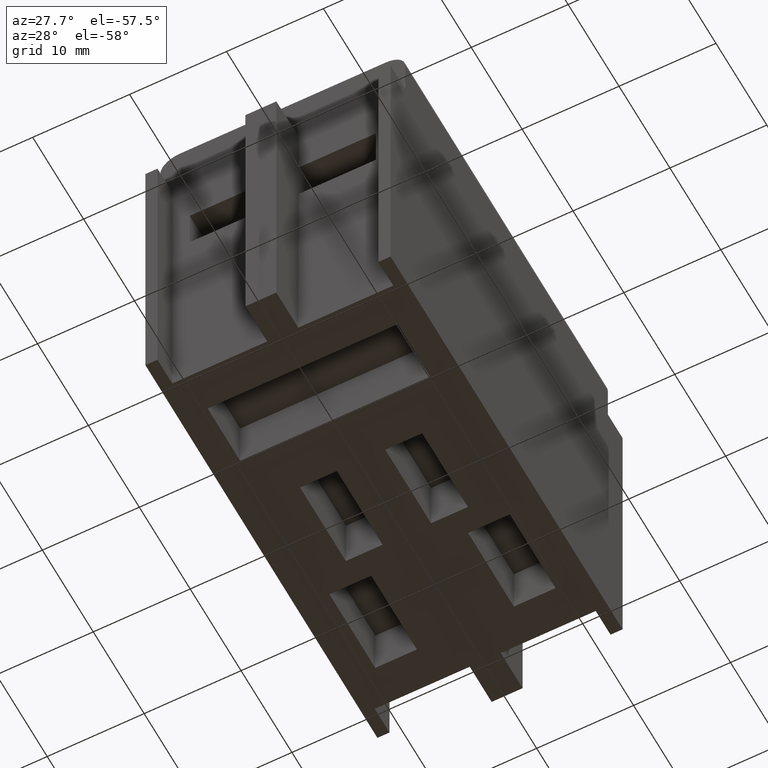
[diagram: clean part render]
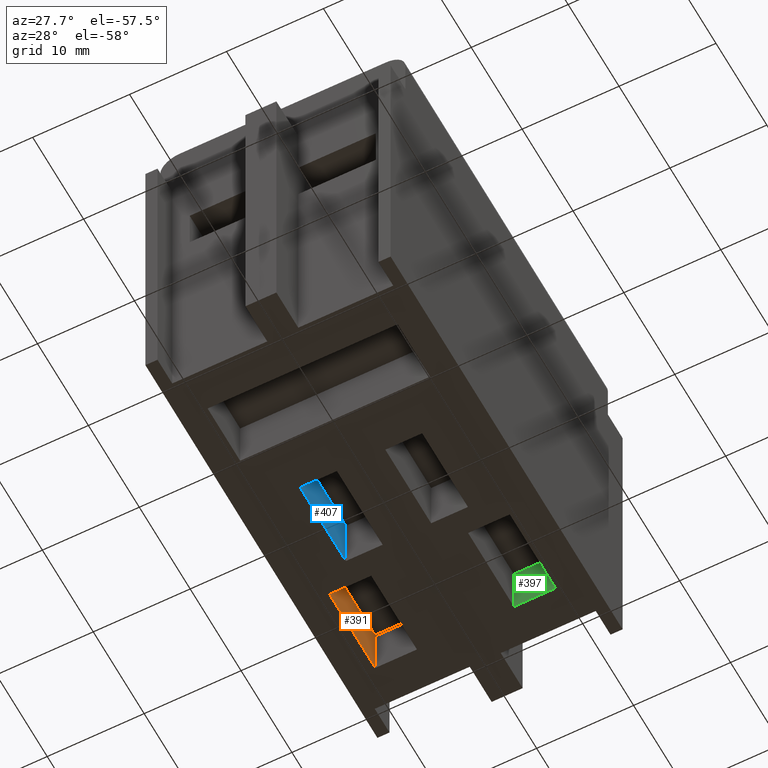
[diagram: same view with three faces highlighted in distinct colors, each labeled with its STEP entity id]
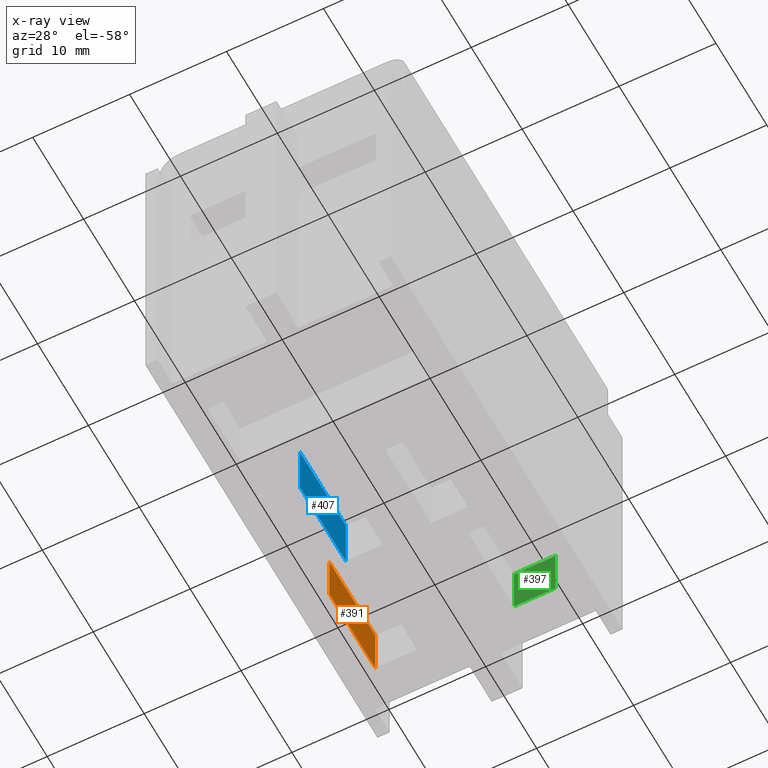
[diagram: x-ray of the same camera — body ghosted, the three highlighted faces saturated]
A machine part, auxiliary view with three faces highlighted in distinct colors.
The next image is the same camera in x-ray (body ghosted, the three faces saturated) — at least one of them is partly hidden behind the body in this view.
Their STEP definitions:

[orange] entity #391 — the highlighted planar face has unit normal (1, 0, -0).
#198=FACE_OUTER_BOUND('',#743,.T.);
#391=ADVANCED_FACE('',(#198),#516,.T.);
#516=PLANE('',#2815);
#743=EDGE_LOOP('',(#1371,#1372,#1373,#1374));
#1371=ORIENTED_EDGE('',*,*,#1735,.F.);
#1372=ORIENTED_EDGE('',*,*,#2023,.F.);
#1373=ORIENTED_EDGE('',*,*,#2024,.T.);
#1374=ORIENTED_EDGE('',*,*,#2017,.T.);
#1495=VERTEX_POINT('',#3579);
#1496=VERTEX_POINT('',#3580);
#1687=VERTEX_POINT('',#4163);
#1690=VERTEX_POINT('',#4173);
#1735=EDGE_CURVE('',#1495,#1496,#2085,.T.);
#2017=EDGE_CURVE('',#1687,#1496,#2311,.T.);
#2023=EDGE_CURVE('',#1690,#1495,#2317,.T.);
#2024=EDGE_CURVE('',#1690,#1687,#2318,.T.);
#2085=LINE('',#3578,#2379);
#2311=LINE('',#4162,#2605);
#2317=LINE('',#4174,#2611);
#2318=LINE('',#4176,#2612);
#2379=VECTOR('',#2869,1.);
#2605=VECTOR('',#3427,1.);
#2611=VECTOR('',#3437,1.);
#2612=VECTOR('',#3440,1.);
#2815=AXIS2_PLACEMENT_3D('',#4177,#3441,#3442);
#2869=DIRECTION('',(3.85494105772623E-016,-1.,0.));
#3427=DIRECTION('',(-1.40129846432482E-045,-3.22739251344522E-015,-1.));
#3437=DIRECTION('',(-1.40129846432482E-045,-3.22739251344522E-015,-1.));
#3440=DIRECTION('',(3.85494105772623E-016,-1.,0.));
#3441=DIRECTION('',(1.,3.85494105772623E-016,-1.24414079094783E-030));
#3442=DIRECTION('',(-3.85108611666851E-016,1.,0.));
#3578=CARTESIAN_POINT('',(-9.30000000000001,16.,75.5));
#3579=CARTESIAN_POINT('',(-9.30000000000001,16.,75.5));
#3580=CARTESIAN_POINT('',(-9.3,7.,75.5));
#4162=CARTESIAN_POINT('',(-9.3,7.00000000000002,81.));
#4163=CARTESIAN_POINT('',(-9.3,7.00000000000002,81.));
#4173=CARTESIAN_POINT('',(-9.30000000000001,16.,81.));
#4174=CARTESIAN_POINT('',(-9.30000000000001,16.,81.));
#4176=CARTESIAN_POINT('',(-9.30000000000001,16.,81.));
#4177=CARTESIAN_POINT('',(-9.30000000000001,16.,81.));

[blue] entity #407 — the highlighted planar face has unit normal (1, 0, -0).
#214=FACE_OUTER_BOUND('',#759,.T.);
#407=ADVANCED_FACE('',(#214),#532,.T.);
#532=PLANE('',#2831);
#759=EDGE_LOOP('',(#1435,#1436,#1437,#1438));
#1435=ORIENTED_EDGE('',*,*,#1708,.F.);
#1436=ORIENTED_EDGE('',*,*,#2049,.F.);
#1437=ORIENTED_EDGE('',*,*,#2050,.T.);
#1438=ORIENTED_EDGE('',*,*,#2051,.T.);
#1468=VERTEX_POINT('',#3524);
#1469=VERTEX_POINT('',#3526);
#1703=VERTEX_POINT('',#4230);
#1704=VERTEX_POINT('',#4232);
#1708=EDGE_CURVE('',#1468,#1469,#2058,.T.);
#2049=EDGE_CURVE('',#1703,#1468,#2343,.T.);
#2050=EDGE_CURVE('',#1703,#1704,#2344,.T.);
#2051=EDGE_CURVE('',#1704,#1469,#2345,.T.);
#2058=LINE('',#3525,#2352);
#2343=LINE('',#4229,#2637);
#2344=LINE('',#4231,#2638);
#2345=LINE('',#4233,#2639);
#2352=VECTOR('',#2842,1.);
#2637=VECTOR('',#3497,1.);
#2638=VECTOR('',#3498,1.);
#2639=VECTOR('',#3499,1.);
#2831=AXIS2_PLACEMENT_3D('',#4234,#3500,#3501);
#2842=DIRECTION('',(0.,-1.,0.));
#3497=DIRECTION('',(-1.40129846432482E-045,-3.22739251344522E-015,-1.));
#3498=DIRECTION('',(0.,-1.,0.));
#3499=DIRECTION('',(-1.40129846432482E-045,-3.22739251344522E-015,-1.));
#3500=DIRECTION('',(1.,0.,-1.40129846432482E-045));
#3501=DIRECTION('',(0.,0.,-1.));
#3524=CARTESIAN_POINT('',(-6.3,4.50000000000001,75.5));
#3525=CARTESIAN_POINT('',(-6.3,4.50000000000001,75.5));
#3526=CARTESIAN_POINT('',(-6.3,-4.5,75.5));
#4229=CARTESIAN_POINT('',(-6.3,4.50000000000002,81.));
#4230=CARTESIAN_POINT('',(-6.3,4.50000000000001,81.5));
#4231=CARTESIAN_POINT('',(-6.3,4.50000000000001,81.5));
#4232=CARTESIAN_POINT('',(-6.3,-4.5,81.5));
#4233=CARTESIAN_POINT('',(-6.3,-4.49999999999998,81.));
#4234=CARTESIAN_POINT('',(-6.3,4.50000000000002,81.));

[green] entity #397 — the highlighted planar face has unit normal (-0, 1, -0).
#204=FACE_OUTER_BOUND('',#749,.T.);
#397=ADVANCED_FACE('',(#204),#522,.F.);
#522=PLANE('',#2821);
#749=EDGE_LOOP('',(#1395,#1396,#1397,#1398));
#1395=ORIENTED_EDGE('',*,*,#1743,.T.);
#1396=ORIENTED_EDGE('',*,*,#2033,.F.);
#1397=ORIENTED_EDGE('',*,*,#2034,.F.);
#1398=ORIENTED_EDGE('',*,*,#2035,.T.);
#1503=VERTEX_POINT('',#3595);
#1504=VERTEX_POINT('',#3596);
#1695=VERTEX_POINT('',#4196);
#1696=VERTEX_POINT('',#4198);
#1743=EDGE_CURVE('',#1503,#1504,#2093,.T.);
#2033=EDGE_CURVE('',#1695,#1504,#2327,.T.);
#2034=EDGE_CURVE('',#1696,#1695,#2328,.T.);
#2035=EDGE_CURVE('',#1696,#1503,#2329,.T.);
#2093=LINE('',#3594,#2387);
#2327=LINE('',#4195,#2621);
#2328=LINE('',#4197,#2622);
#2329=LINE('',#4199,#2623);
#2387=VECTOR('',#2877,1.);
#2621=VECTOR('',#3461,1.);
#2622=VECTOR('',#3462,1.);
#2623=VECTOR('',#3463,1.);
#2821=AXIS2_PLACEMENT_3D('',#4200,#3464,#3465);
#2877=DIRECTION('',(1.,2.42054438508392E-015,0.));
#3461=DIRECTION('',(-1.40129846432482E-045,-3.22739251344522E-015,-1.));
#3462=DIRECTION('',(1.,2.42054438508392E-015,0.));
#3463=DIRECTION('',(-1.40129846432482E-045,-3.22739251344522E-015,-1.));
#3464=DIRECTION('',(-2.42054438508392E-015,1.,-3.22739251344522E-015));
#3465=DIRECTION('',(0.,3.22658566531686E-015,1.));
#3594=CARTESIAN_POINT('',(4.99999999999999,16.,75.5));
#3595=CARTESIAN_POINT('',(4.99999999999999,16.,75.5));
#3596=CARTESIAN_POINT('',(9.3,16.,75.5));
#4195=CARTESIAN_POINT('',(9.3,16.,81.));
#4196=CARTESIAN_POINT('',(9.3,16.,81.));
#4197=CARTESIAN_POINT('',(4.99999999999999,16.,81.));
#4198=CARTESIAN_POINT('',(4.99999999999999,16.,81.));
#4199=CARTESIAN_POINT('',(4.99999999999999,16.,81.));
#4200=CARTESIAN_POINT('',(4.99999999999999,16.,81.));